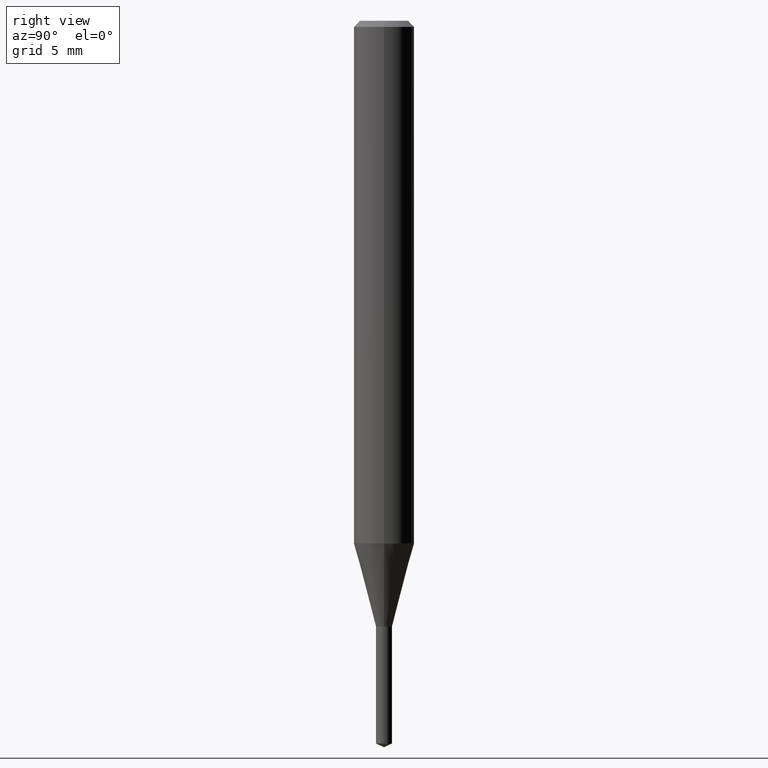
[diagram: clean part render]
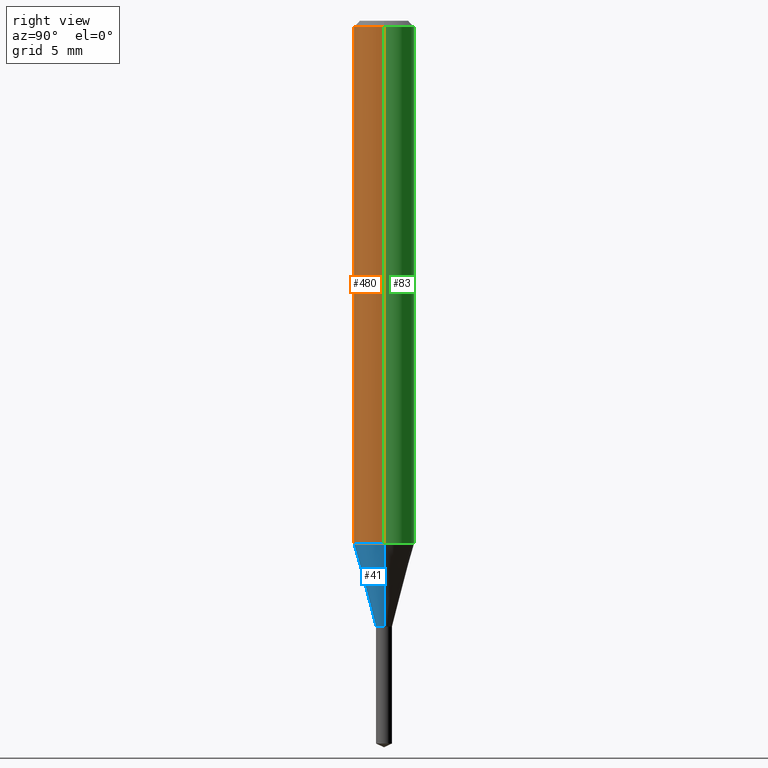
[diagram: same view with three faces highlighted in distinct colors, each labeled with its STEP entity id]
A machine part, right view with three faces highlighted in distinct colors.
Their STEP definitions:

[orange] entity #480 — the highlighted cylindrical surface (edge-blend (fillet) strip) has radius 1.5875 mm, axis along (-0, 0, 1).
#4 = CIRCLE ( 'NONE', #466, 0.06250000000000013878 ) ;
#26 = AXIS2_PLACEMENT_3D ( 'NONE', #109, #451, #64 ) ;
#28 = CARTESIAN_POINT ( 'NONE',  ( -0.06250000000000006939, 4.440892098500631092E-16, -3.074334431409319267E-30 ) ) ;
#36 = DIRECTION ( 'NONE',  ( -2.445468806185136877E-29, 3.491481338843145188E-15, 1.000000000000000000 ) ) ;
#39 = DIRECTION ( 'NONE',  ( -2.445468806185136597E-29, 3.491481338843145583E-15, 1.000000000000000000 ) ) ;
#40 = FACE_OUTER_BOUND ( 'NONE', #55, .T. ) ;
#55 = EDGE_LOOP ( 'NONE', ( #134, #428, #370, #258 ) ) ;
#64 = DIRECTION ( 'NONE',  ( 1.000000000000000000, -6.982962677686266711E-15, 0.000000000000000000 ) ) ;
#79 = CIRCLE ( 'NONE', #26, 0.06250000000000000000 ) ;
#80 = DIRECTION ( 'NONE',  ( -2.445468806185136597E-29, 3.491481338843145583E-15, 1.000000000000000000 ) ) ;
#86 = VECTOR ( 'NONE', #184, 39.37007874015748143 ) ;
#97 = EDGE_CURVE ( 'NONE', #113, #161, #4, .T. ) ;
#109 = CARTESIAN_POINT ( 'NONE',  ( 3.056836007731441415E-31, -4.364351673553961684E-17, -0.01250000000000008396 ) ) ;
#113 = VERTEX_POINT ( 'NONE', #241 ) ;
#134 = ORIENTED_EDGE ( 'NONE', *, *, #357, .F. ) ;
#161 = VERTEX_POINT ( 'NONE', #373 ) ;
#184 = DIRECTION ( 'NONE',  ( -2.445468806185136877E-29, 3.491481338843145188E-15, 1.000000000000000000 ) ) ;
#189 = VECTOR ( 'NONE', #36, 39.37007874015748143 ) ;
#210 = EDGE_CURVE ( 'NONE', #161, #236, #359, .T. ) ;
#236 = VERTEX_POINT ( 'NONE', #285 ) ;
#241 = CARTESIAN_POINT ( 'NONE',  ( -0.06250000000000013878, -3.324356200531632040E-15, -1.079325662851836398 ) ) ;
#247 = CYLINDRICAL_SURFACE ( 'NONE', #301, 0.06250000000000006939 ) ;
#258 = ORIENTED_EDGE ( 'NONE', *, *, #322, .F. ) ;
#285 = CARTESIAN_POINT ( 'NONE',  ( 0.06250000000000000000, -4.800786840909313294E-16, -0.01250000000000008396 ) ) ;
#301 = AXIS2_PLACEMENT_3D ( 'NONE', #349, #39, #421 ) ;
#307 = VERTEX_POINT ( 'NONE', #376 ) ;
#322 = EDGE_CURVE ( 'NONE', #307, #236, #79, .T. ) ;
#349 = CARTESIAN_POINT ( 'NONE',  ( 0.000000000000000000, 0.000000000000000000, 0.000000000000000000 ) ) ;
#357 = EDGE_CURVE ( 'NONE', #113, #307, #441, .T. ) ;
#359 = LINE ( 'NONE', #367, #86 ) ;
#367 = CARTESIAN_POINT ( 'NONE',  ( 0.06250000000000006939, -4.364351673553921624E-16, 3.047610484872463374E-30 ) ) ;
#370 = ORIENTED_EDGE ( 'NONE', *, *, #210, .T. ) ;
#373 = CARTESIAN_POINT ( 'NONE',  ( 0.06250000000000013878, -4.204880577737087508E-15, -1.079325662851836398 ) ) ;
#376 = CARTESIAN_POINT ( 'NONE',  ( -0.06250000000000000000, -1.461955253708553901E-15, -0.01250000000000008396 ) ) ;
#408 = CARTESIAN_POINT ( 'NONE',  ( 2.639457240219261592E-29, -3.768445410381695839E-15, -1.079325662851836398 ) ) ;
#421 = DIRECTION ( 'NONE',  ( 1.000000000000000000, -6.982962677686266711E-15, 4.876176775795935793E-29 ) ) ;
#428 = ORIENTED_EDGE ( 'NONE', *, *, #97, .T. ) ;
#441 = LINE ( 'NONE', #28, #189 ) ;
#451 = DIRECTION ( 'NONE',  ( -2.445468806185136597E-29, 3.491481338843145583E-15, 1.000000000000000000 ) ) ;
#466 = AXIS2_PLACEMENT_3D ( 'NONE', #408, #80, #476 ) ;
#476 = DIRECTION ( 'NONE',  ( 1.000000000000000000, -6.982962677686270655E-15, 0.000000000000000000 ) ) ;
#480 = ADVANCED_FACE ( 'NONE', ( #40 ), #247, .T. ) ;

[blue] entity #41 — the highlighted conical surface has half-angle 15 deg.
#3 = CARTESIAN_POINT ( 'NONE',  ( 0.01650000000000000078, -4.483062039074598658E-15, -1.251000000000000112 ) ) ;
#4 = CIRCLE ( 'NONE', #466, 0.06250000000000013878 ) ;
#11 = AXIS2_PLACEMENT_3D ( 'NONE', #380, #478, #334 ) ;
#37 = CARTESIAN_POINT ( 'NONE',  ( 3.059281476537606349E-29, -4.367843154892775478E-15, -1.251000000000000112 ) ) ;
#41 = ADVANCED_FACE ( 'NONE', ( #306 ), #356, .T. ) ;
#71 = DIRECTION ( 'NONE',  ( 0.2588190451025281225, 1.565188264969568128E-15, 0.9659258262890662028 ) ) ;
#75 = VERTEX_POINT ( 'NONE', #273 ) ;
#80 = DIRECTION ( 'NONE',  ( -2.445468806185136597E-29, 3.491481338843145583E-15, 1.000000000000000000 ) ) ;
#97 = EDGE_CURVE ( 'NONE', #113, #161, #4, .T. ) ;
#111 = DIRECTION ( 'NONE',  ( -0.2588190451025281225, 5.211531920934590485E-15, 0.9659258262890662028 ) ) ;
#113 = VERTEX_POINT ( 'NONE', #241 ) ;
#124 = ORIENTED_EDGE ( 'NONE', *, *, #97, .F. ) ;
#135 = VECTOR ( 'NONE', #111, 39.37007874015748854 ) ;
#161 = VERTEX_POINT ( 'NONE', #373 ) ;
#164 = EDGE_LOOP ( 'NONE', ( #396, #321, #199, #124 ) ) ;
#192 = CARTESIAN_POINT ( 'NONE',  ( 0.01650000000000000078, -4.483062039074598658E-15, -1.251000000000000112 ) ) ;
#199 = ORIENTED_EDGE ( 'NONE', *, *, #379, .T. ) ;
#241 = CARTESIAN_POINT ( 'NONE',  ( -0.06250000000000013878, -3.324356200531632040E-15, -1.079325662851836398 ) ) ;
#246 = EDGE_CURVE ( 'NONE', #75, #488, #444, .T. ) ;
#259 = CARTESIAN_POINT ( 'NONE',  ( -0.01650000000000000078, -4.250603603492358449E-15, -1.251000000000000112 ) ) ;
#270 = DIRECTION ( 'NONE',  ( -2.445468806185136597E-29, 3.491481338843145583E-15, 1.000000000000000000 ) ) ;
#273 = CARTESIAN_POINT ( 'NONE',  ( -0.01650000000000000078, -3.986123892074990009E-15, -1.251000000000000112 ) ) ;
#300 = DIRECTION ( 'NONE',  ( 1.000000000000000000, -6.982962677686243834E-15, 0.000000000000000000 ) ) ;
#305 = LINE ( 'NONE', #259, #135 ) ;
#306 = FACE_OUTER_BOUND ( 'NONE', #164, .T. ) ;
#321 = ORIENTED_EDGE ( 'NONE', *, *, #246, .T. ) ;
#334 = DIRECTION ( 'NONE',  ( 1.000000000000000000, -6.982962677686243834E-15, 0.000000000000000000 ) ) ;
#356 = CONICAL_SURFACE ( 'NONE', #483, 0.01650000000000000078, 0.2617993877991570684 ) ;
#373 = CARTESIAN_POINT ( 'NONE',  ( 0.06250000000000013878, -4.204880577737087508E-15, -1.079325662851836398 ) ) ;
#379 = EDGE_CURVE ( 'NONE', #488, #161, #489, .T. ) ;
#380 = CARTESIAN_POINT ( 'NONE',  ( 3.059281476537606349E-29, -4.367843154892775478E-15, -1.251000000000000112 ) ) ;
#396 = ORIENTED_EDGE ( 'NONE', *, *, #402, .F. ) ;
#402 = EDGE_CURVE ( 'NONE', #75, #113, #305, .T. ) ;
#408 = CARTESIAN_POINT ( 'NONE',  ( 2.639457240219261592E-29, -3.768445410381695839E-15, -1.079325662851836398 ) ) ;
#419 = VECTOR ( 'NONE', #71, 39.37007874015748854 ) ;
#444 = CIRCLE ( 'NONE', #11, 0.01650000000000000078 ) ;
#466 = AXIS2_PLACEMENT_3D ( 'NONE', #408, #80, #476 ) ;
#476 = DIRECTION ( 'NONE',  ( 1.000000000000000000, -6.982962677686270655E-15, 0.000000000000000000 ) ) ;
#478 = DIRECTION ( 'NONE',  ( -2.445468806185136597E-29, 3.491481338843145583E-15, 1.000000000000000000 ) ) ;
#483 = AXIS2_PLACEMENT_3D ( 'NONE', #37, #270, #300 ) ;
#488 = VERTEX_POINT ( 'NONE', #3 ) ;
#489 = LINE ( 'NONE', #192, #419 ) ;

[green] entity #83 — the highlighted cylindrical surface (edge-blend (fillet) strip) has radius 1.5875 mm, axis along (-0, 0, 1).
#5 = AXIS2_PLACEMENT_3D ( 'NONE', #206, #423, #274 ) ;
#28 = CARTESIAN_POINT ( 'NONE',  ( -0.06250000000000006939, 4.440892098500631092E-16, -3.074334431409319267E-30 ) ) ;
#36 = DIRECTION ( 'NONE',  ( -2.445468806185136877E-29, 3.491481338843145188E-15, 1.000000000000000000 ) ) ;
#43 = AXIS2_PLACEMENT_3D ( 'NONE', #342, #235, #378 ) ;
#77 = CYLINDRICAL_SURFACE ( 'NONE', #43, 0.06250000000000006939 ) ;
#83 = ADVANCED_FACE ( 'NONE', ( #194 ), #77, .T. ) ;
#86 = VECTOR ( 'NONE', #184, 39.37007874015748143 ) ;
#89 = EDGE_CURVE ( 'NONE', #161, #113, #120, .T. ) ;
#94 = AXIS2_PLACEMENT_3D ( 'NONE', #262, #232, #417 ) ;
#113 = VERTEX_POINT ( 'NONE', #241 ) ;
#120 = CIRCLE ( 'NONE', #94, 0.06250000000000013878 ) ;
#161 = VERTEX_POINT ( 'NONE', #373 ) ;
#184 = DIRECTION ( 'NONE',  ( -2.445468806185136877E-29, 3.491481338843145188E-15, 1.000000000000000000 ) ) ;
#189 = VECTOR ( 'NONE', #36, 39.37007874015748143 ) ;
#194 = FACE_OUTER_BOUND ( 'NONE', #433, .T. ) ;
#206 = CARTESIAN_POINT ( 'NONE',  ( 3.056836007731441415E-31, -4.364351673553961684E-17, -0.01250000000000008396 ) ) ;
#210 = EDGE_CURVE ( 'NONE', #161, #236, #359, .T. ) ;
#232 = DIRECTION ( 'NONE',  ( -2.445468806185136597E-29, 3.491481338843145583E-15, 1.000000000000000000 ) ) ;
#235 = DIRECTION ( 'NONE',  ( -2.445468806185136597E-29, 3.491481338843145583E-15, 1.000000000000000000 ) ) ;
#236 = VERTEX_POINT ( 'NONE', #285 ) ;
#241 = CARTESIAN_POINT ( 'NONE',  ( -0.06250000000000013878, -3.324356200531632040E-15, -1.079325662851836398 ) ) ;
#262 = CARTESIAN_POINT ( 'NONE',  ( 2.639457240219261592E-29, -3.768445410381695839E-15, -1.079325662851836398 ) ) ;
#274 = DIRECTION ( 'NONE',  ( 1.000000000000000000, -6.982962677686266711E-15, 0.000000000000000000 ) ) ;
#285 = CARTESIAN_POINT ( 'NONE',  ( 0.06250000000000000000, -4.800786840909313294E-16, -0.01250000000000008396 ) ) ;
#304 = ORIENTED_EDGE ( 'NONE', *, *, #357, .T. ) ;
#307 = VERTEX_POINT ( 'NONE', #376 ) ;
#342 = CARTESIAN_POINT ( 'NONE',  ( 0.000000000000000000, 0.000000000000000000, 0.000000000000000000 ) ) ;
#357 = EDGE_CURVE ( 'NONE', #113, #307, #441, .T. ) ;
#359 = LINE ( 'NONE', #367, #86 ) ;
#367 = CARTESIAN_POINT ( 'NONE',  ( 0.06250000000000006939, -4.364351673553921624E-16, 3.047610484872463374E-30 ) ) ;
#373 = CARTESIAN_POINT ( 'NONE',  ( 0.06250000000000013878, -4.204880577737087508E-15, -1.079325662851836398 ) ) ;
#376 = CARTESIAN_POINT ( 'NONE',  ( -0.06250000000000000000, -1.461955253708553901E-15, -0.01250000000000008396 ) ) ;
#378 = DIRECTION ( 'NONE',  ( 1.000000000000000000, -6.982962677686266711E-15, 4.876176775795935793E-29 ) ) ;
#390 = CIRCLE ( 'NONE', #5, 0.06250000000000000000 ) ;
#403 = ORIENTED_EDGE ( 'NONE', *, *, #89, .T. ) ;
#417 = DIRECTION ( 'NONE',  ( 1.000000000000000000, -6.982962677686270655E-15, 0.000000000000000000 ) ) ;
#423 = DIRECTION ( 'NONE',  ( -2.445468806185136597E-29, 3.491481338843145583E-15, 1.000000000000000000 ) ) ;
#433 = EDGE_LOOP ( 'NONE', ( #403, #304, #463, #446 ) ) ;
#441 = LINE ( 'NONE', #28, #189 ) ;
#446 = ORIENTED_EDGE ( 'NONE', *, *, #210, .F. ) ;
#461 = EDGE_CURVE ( 'NONE', #236, #307, #390, .T. ) ;
#463 = ORIENTED_EDGE ( 'NONE', *, *, #461, .F. ) ;